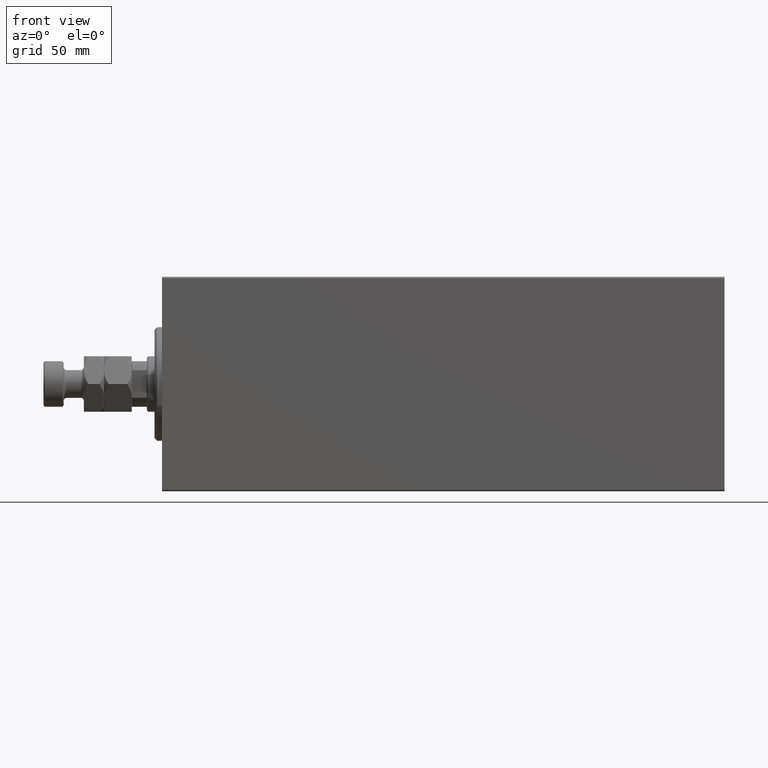
[diagram: clean part render]
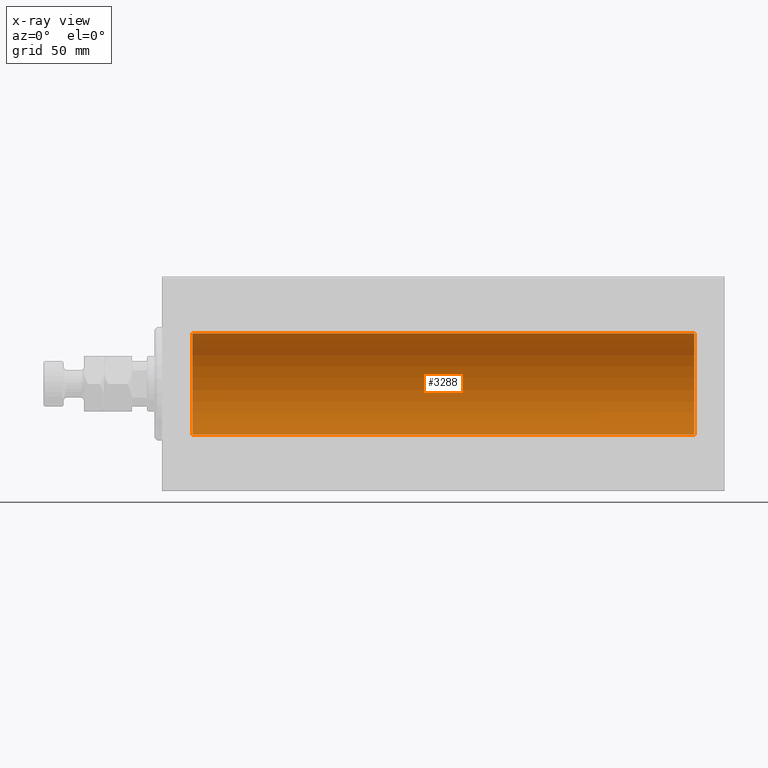
[diagram: x-ray — body ghosted, one internal face saturated and labeled with its STEP entity id]
A machine part, front view, then the same camera in x-ray: the body is ghosted and one INTERNAL B-rep face — a face not visible from any outside direction — is saturated and labeled: STEP entity #3288.
In plain terms, the highlighted cylindrical surface (partial cylindrical patch) has radius 20 mm, axis along (-1, -0, -0).
Its self-contained STEP definition (entity closure, byte-faithful):
#1068 = EDGE_CURVE ( 'NONE', #7902, #6813, #20845, .T. ) ;
#3229 = ORIENTED_EDGE ( 'NONE', *, *, #4526, .T. ) ;
#3288 = ADVANCED_FACE ( 'NONE', ( #30518 ), #44520, .F. ) ;
#4526 = EDGE_CURVE ( 'NONE', #21353, #6813, #45037, .T. ) ;
#4700 = CARTESIAN_POINT ( 'NONE',  ( 211.0000000000000000, 2.449293598294706513E-15, -20.00000000000000000 ) ) ;
#4749 = CIRCLE ( 'NONE', #16493, 20.00000000000000000 ) ;
#5928 = CARTESIAN_POINT ( 'NONE',  ( 211.0000000000000000, 0.000000000000000000, 20.00000000000000000 ) ) ;
#6430 = CARTESIAN_POINT ( 'NONE',  ( 211.0000000000000000, 0.000000000000000000, 0.000000000000000000 ) ) ;
#6813 = VERTEX_POINT ( 'NONE', #15706 ) ;
#7162 = EDGE_CURVE ( 'NONE', #31518, #7902, #4749, .T. ) ;
#7902 = VERTEX_POINT ( 'NONE', #4700 ) ;
#10777 = DIRECTION ( 'NONE',  ( 0.000000000000000000, 0.000000000000000000, 1.000000000000000000 ) ) ;
#12347 = VECTOR ( 'NONE', #37392, 1000.000000000000000 ) ;
#13748 = DIRECTION ( 'NONE',  ( -1.000000000000000000, -0.000000000000000000, -0.000000000000000000 ) ) ;
#15156 = ORIENTED_EDGE ( 'NONE', *, *, #1068, .F. ) ;
#15706 = CARTESIAN_POINT ( 'NONE',  ( 12.00000000000001066, 2.449293598294706513E-15, -20.00000000000000000 ) ) ;
#16493 = AXIS2_PLACEMENT_3D ( 'NONE', #6430, #20909, #10777 ) ;
#16987 = CARTESIAN_POINT ( 'NONE',  ( 211.0000000000000000, 0.000000000000000000, 20.00000000000000000 ) ) ;
#17085 = DIRECTION ( 'NONE',  ( 0.000000000000000000, 0.000000000000000000, 1.000000000000000000 ) ) ;
#17164 = CARTESIAN_POINT ( 'NONE',  ( 211.0000000000000000, 2.449293598294706513E-15, -20.00000000000000000 ) ) ;
#17184 = ORIENTED_EDGE ( 'NONE', *, *, #39476, .T. ) ;
#20314 = CARTESIAN_POINT ( 'NONE',  ( 12.00000000000001066, 0.000000000000000000, 0.000000000000000000 ) ) ;
#20845 = LINE ( 'NONE', #17164, #12347 ) ;
#20909 = DIRECTION ( 'NONE',  ( -1.000000000000000000, 0.000000000000000000, 0.000000000000000000 ) ) ;
#21353 = VERTEX_POINT ( 'NONE', #26450 ) ;
#24329 = LINE ( 'NONE', #16987, #33556 ) ;
#25255 = AXIS2_PLACEMENT_3D ( 'NONE', #20314, #34314, #17085 ) ;
#26450 = CARTESIAN_POINT ( 'NONE',  ( 12.00000000000001066, 0.000000000000000000, 20.00000000000000000 ) ) ;
#30518 = FACE_OUTER_BOUND ( 'NONE', #45193, .T. ) ;
#31518 = VERTEX_POINT ( 'NONE', #5928 ) ;
#32459 = AXIS2_PLACEMENT_3D ( 'NONE', #33513, #37174, #40409 ) ;
#33513 = CARTESIAN_POINT ( 'NONE',  ( 211.0000000000000000, 0.000000000000000000, 0.000000000000000000 ) ) ;
#33556 = VECTOR ( 'NONE', #13748, 1000.000000000000000 ) ;
#34314 = DIRECTION ( 'NONE',  ( -1.000000000000000000, 0.000000000000000000, 0.000000000000000000 ) ) ;
#37174 = DIRECTION ( 'NONE',  ( -1.000000000000000000, -0.000000000000000000, -0.000000000000000000 ) ) ;
#37325 = ORIENTED_EDGE ( 'NONE', *, *, #7162, .F. ) ;
#37392 = DIRECTION ( 'NONE',  ( -1.000000000000000000, -0.000000000000000000, -0.000000000000000000 ) ) ;
#39476 = EDGE_CURVE ( 'NONE', #31518, #21353, #24329, .T. ) ;
#40409 = DIRECTION ( 'NONE',  ( 0.000000000000000000, 0.000000000000000000, 1.000000000000000000 ) ) ;
#44520 = CYLINDRICAL_SURFACE ( 'NONE', #32459, 20.00000000000000000 ) ;
#45037 = CIRCLE ( 'NONE', #25255, 20.00000000000000000 ) ;
#45193 = EDGE_LOOP ( 'NONE', ( #15156, #37325, #17184, #3229 ) ) ;